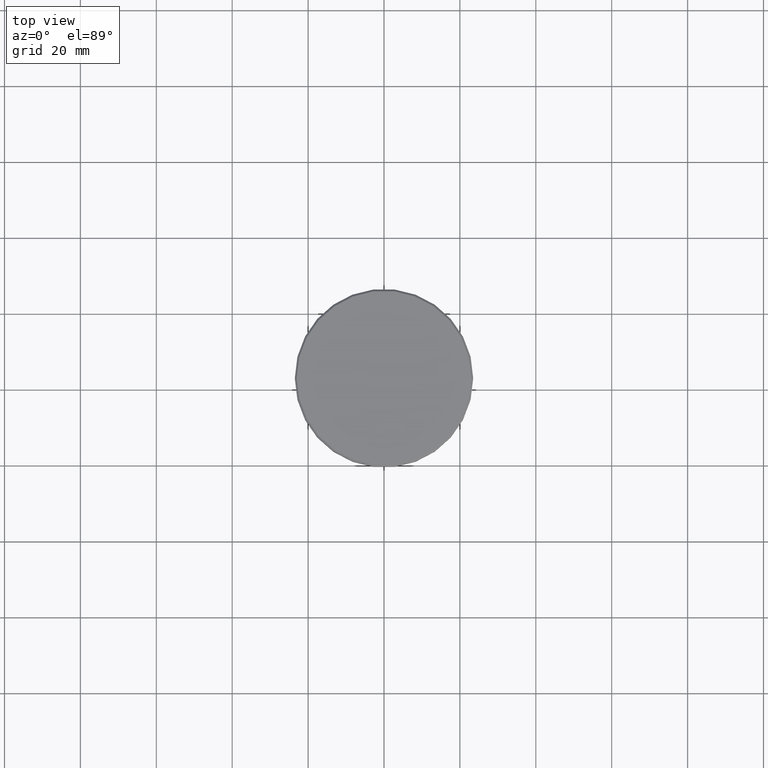
[diagram: clean part render]
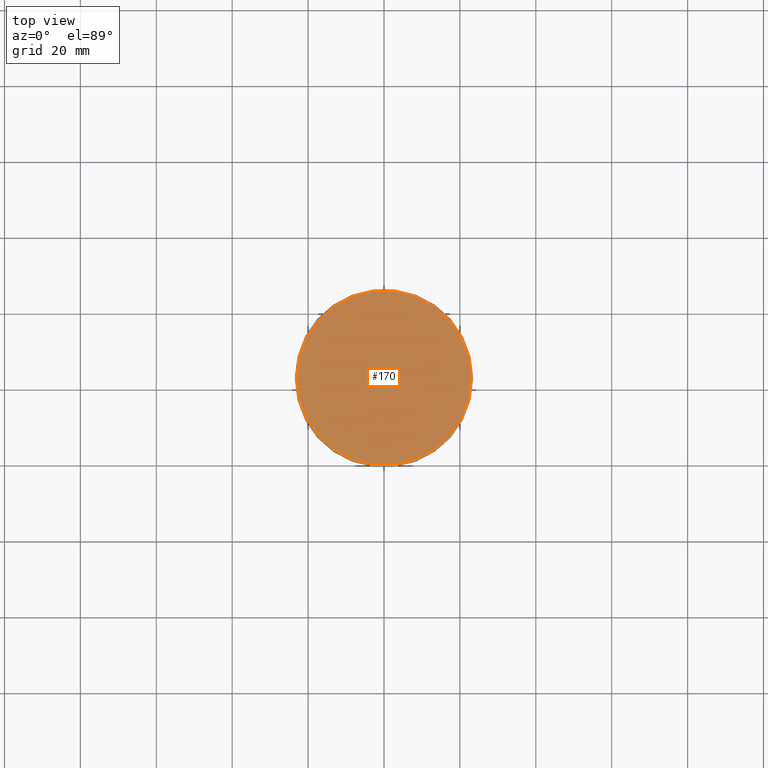
[diagram: same view with one face highlighted and labeled with its STEP entity id]
A machine part, top view. The second image highlights one B-rep face of the part: STEP entity #170.
In plain terms, the highlighted planar face has unit normal (0, -0, 1).
Its self-contained STEP definition (entity closure, byte-faithful):
#16 = EDGE_CURVE ( 'NONE', #221, #64, #1144, .T. ) ;
#64 = VERTEX_POINT ( 'NONE', #1151 ) ;
#170 = ADVANCED_FACE ( 'NONE', ( #812 ), #1167, .T. ) ;
#221 = VERTEX_POINT ( 'NONE', #1115 ) ;
#235 = AXIS2_PLACEMENT_3D ( 'NONE', #1060, #973, #262 ) ;
#262 = DIRECTION ( 'NONE',  ( 1.000000000000000000, 0.000000000000000000, 0.000000000000000000 ) ) ;
#453 = CIRCLE ( 'NONE', #621, 23.00000000000002487 ) ;
#514 = ORIENTED_EDGE ( 'NONE', *, *, #1098, .T. ) ;
#621 = AXIS2_PLACEMENT_3D ( 'NONE', #1108, #1113, #824 ) ;
#706 = DIRECTION ( 'NONE',  ( 1.000000000000000000, 0.000000000000000000, 0.000000000000000000 ) ) ;
#777 = EDGE_LOOP ( 'NONE', ( #514, #1073 ) ) ;
#787 = AXIS2_PLACEMENT_3D ( 'NONE', #882, #968, #706 ) ;
#812 = FACE_OUTER_BOUND ( 'NONE', #777, .T. ) ;
#824 = DIRECTION ( 'NONE',  ( 1.000000000000000000, 0.000000000000000000, 0.000000000000000000 ) ) ;
#882 = CARTESIAN_POINT ( 'NONE',  ( 0.000000000000000000, 0.000000000000000000, 0.000000000000000000 ) ) ;
#968 = DIRECTION ( 'NONE',  ( -0.000000000000000000, -0.000000000000000000, 1.000000000000000000 ) ) ;
#973 = DIRECTION ( 'NONE',  ( 0.000000000000000000, -0.000000000000000000, 1.000000000000000000 ) ) ;
#1060 = CARTESIAN_POINT ( 'NONE',  ( 0.000000000000000000, 0.000000000000000000, 0.000000000000000000 ) ) ;
#1073 = ORIENTED_EDGE ( 'NONE', *, *, #16, .T. ) ;
#1098 = EDGE_CURVE ( 'NONE', #64, #221, #453, .T. ) ;
#1108 = CARTESIAN_POINT ( 'NONE',  ( 0.000000000000000000, 0.000000000000000000, 0.000000000000000000 ) ) ;
#1113 = DIRECTION ( 'NONE',  ( -0.000000000000000000, -0.000000000000000000, 1.000000000000000000 ) ) ;
#1115 = CARTESIAN_POINT ( 'NONE',  ( 23.00000000000002487, 2.847303808017597717E-15, 0.000000000000000000 ) ) ;
#1144 = CIRCLE ( 'NONE', #787, 23.00000000000002487 ) ;
#1151 = CARTESIAN_POINT ( 'NONE',  ( -23.00000000000002487, 0.000000000000000000, 0.000000000000000000 ) ) ;
#1167 = PLANE ( 'NONE',  #235 ) ;